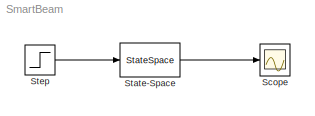
MODEL SmartBeam
KIND model
BLOCK [Scope] Scope
  DataFormat = StructureWithTime
  Floating = off
  NumInputPorts = 1
  Ports = [1]
  SID = 3
  SampleTime = 0
  ShowLegends = off
  TickLabels = on
BLOCK [StateSpace] State-Space
  A = A
  B = B
  C = C
  D = D
  SID = 1
BLOCK [Step] Step
  After = 0.1
  SID = 2
  SampleTime = 0
  Time = 0
LINE State-Space:1 -> Scope:1
LINE Step:1 -> State-Space:1
